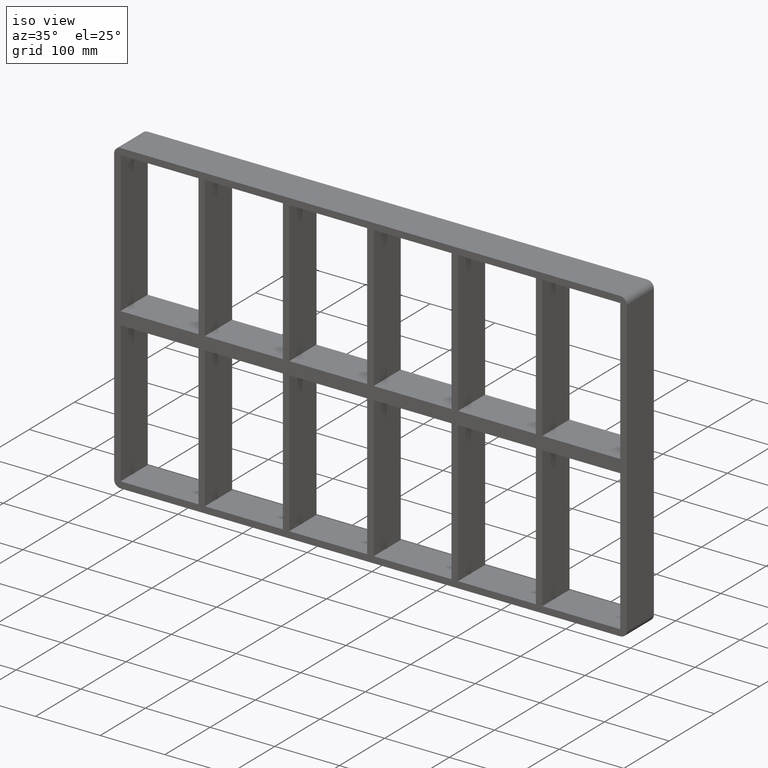
[diagram: clean part render]
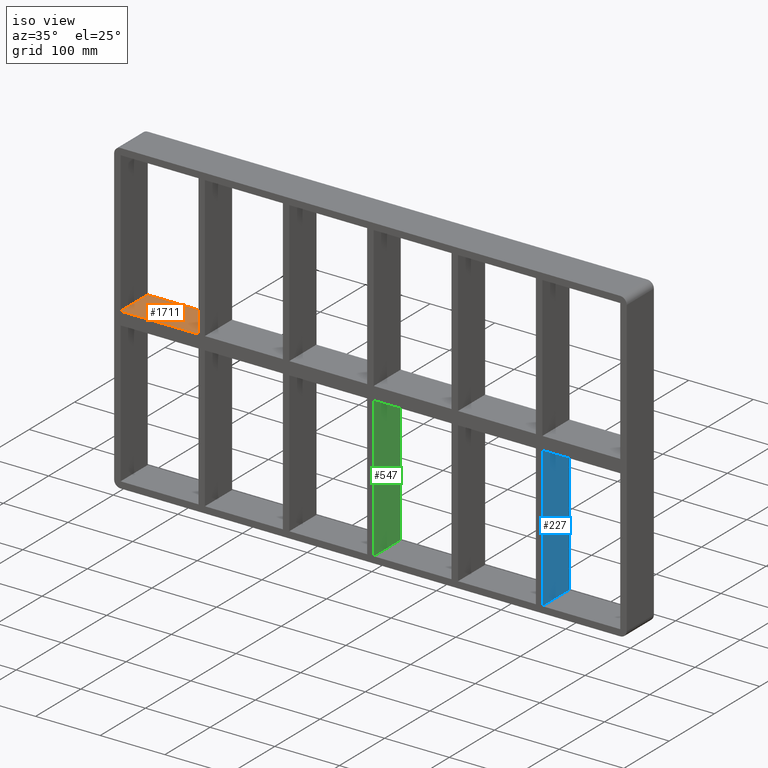
[diagram: same view with three faces highlighted in distinct colors, each labeled with its STEP entity id]
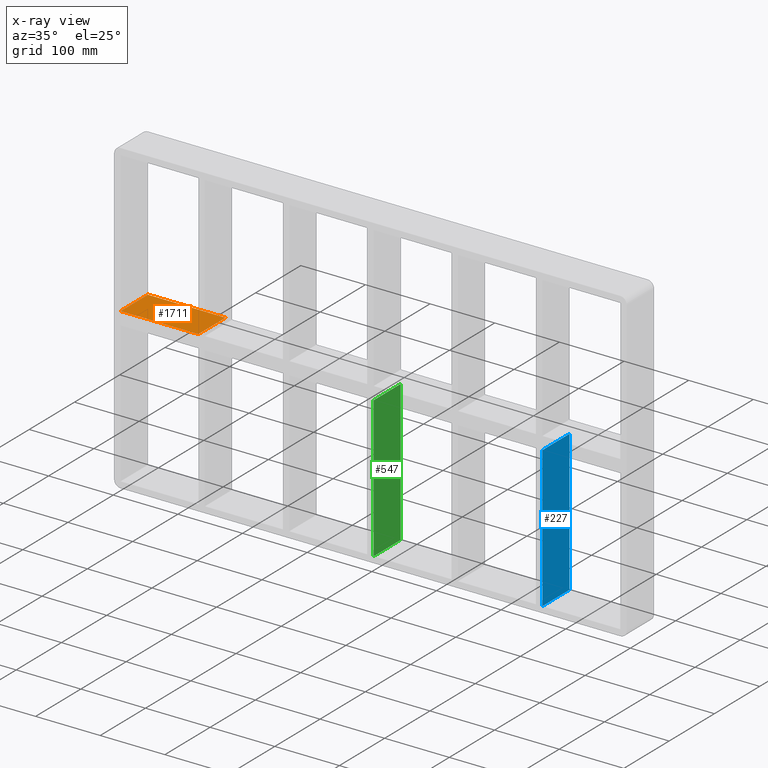
[diagram: x-ray of the same camera — body ghosted, the three highlighted faces saturated]
A machine part, iso view with three faces highlighted in distinct colors.
The next image is the same camera in x-ray (body ghosted, the three faces saturated) — at least one of them is partly hidden behind the body in this view.
Their STEP definitions:

[orange] entity #1711 — the highlighted planar face has unit normal (0, 0, 1).
#1078=CARTESIAN_POINT('',(-386.49999999999983,-3.0,10.0));
#1079=VERTEX_POINT('',#1078);
#1096=CARTESIAN_POINT('',(-266.00000000000131,-3.0,10.0));
#1097=VERTEX_POINT('',#1096);
#1104=CARTESIAN_POINT('',(-386.49999999999983,-3.0,10.0));
#1105=DIRECTION('',(1.0,0.0,0.0));
#1106=VECTOR('',#1105,120.49999999999852);
#1107=LINE('',#1104,#1106);
#1108=EDGE_CURVE('',#1079,#1097,#1107,.T.);
#1422=CARTESIAN_POINT('',(-386.49999999999983,57.0,10.0));
#1423=VERTEX_POINT('',#1422);
#1424=CARTESIAN_POINT('',(-266.00000000000131,57.0,10.0));
#1425=VERTEX_POINT('',#1424);
#1426=CARTESIAN_POINT('',(-386.49999999999983,57.0,10.0));
#1427=DIRECTION('',(1.0,0.0,0.0));
#1428=VECTOR('',#1427,120.49999999999852);
#1429=LINE('',#1426,#1428);
#1430=EDGE_CURVE('',#1423,#1425,#1429,.T.);
#1690=CARTESIAN_POINT('',(-386.49999999999983,-3.0,10.0));
#1691=DIRECTION('',(0.0,0.0,1.0));
#1692=DIRECTION('',(1.0,0.0,0.0));
#1693=AXIS2_PLACEMENT_3D('',#1690,#1691,#1692);
#1694=PLANE('',#1693);
#1695=CARTESIAN_POINT('',(-266.00000000000131,57.0,10.0));
#1696=DIRECTION('',(0.0,-1.0,0.0));
#1697=VECTOR('',#1696,60.0);
#1698=LINE('',#1695,#1697);
#1699=EDGE_CURVE('',#1425,#1097,#1698,.T.);
#1700=ORIENTED_EDGE('',*,*,#1699,.F.);
#1701=ORIENTED_EDGE('',*,*,#1430,.F.);
#1702=CARTESIAN_POINT('',(-386.50000000000006,-3.0,10.0));
#1703=DIRECTION('',(0.0,1.0,0.0));
#1704=VECTOR('',#1703,60.000000000000007);
#1705=LINE('',#1702,#1704);
#1706=EDGE_CURVE('',#1079,#1423,#1705,.T.);
#1707=ORIENTED_EDGE('',*,*,#1706,.F.);
#1708=ORIENTED_EDGE('',*,*,#1108,.T.);
#1709=EDGE_LOOP('',(#1700,#1701,#1707,#1708));
#1710=FACE_OUTER_BOUND('',#1709,.T.);
#1711=ADVANCED_FACE('',(#1710),#1694,.T.);

[blue] entity #227 — the highlighted planar face has unit normal (1, 0, 0).
#188=CARTESIAN_POINT('',(265.99999999999642,-3.0,227.99999999999997));
#189=DIRECTION('',(1.0,0.0,0.0));
#190=DIRECTION('',(0.0,0.0,-1.0));
#191=AXIS2_PLACEMENT_3D('',#188,#189,#190);
#192=PLANE('',#191);
#193=CARTESIAN_POINT('',(265.99999999999642,-3.0,-10.000000000009344));
#194=VERTEX_POINT('',#193);
#195=CARTESIAN_POINT('',(265.99999999999642,57.0,-10.000000000009344));
#196=VERTEX_POINT('',#195);
#197=CARTESIAN_POINT('',(265.99999999999636,-3.0,-10.000000000009344));
#198=DIRECTION('',(0.0,1.0,0.0));
#199=VECTOR('',#198,60.0);
#200=LINE('',#197,#199);
#201=EDGE_CURVE('',#194,#196,#200,.T.);
#202=ORIENTED_EDGE('',*,*,#201,.F.);
#203=CARTESIAN_POINT('',(265.99999999999642,-3.0,-227.99999999998417));
#204=VERTEX_POINT('',#203);
#205=CARTESIAN_POINT('',(265.99999999999642,-3.0,-10.000000000009351));
#206=DIRECTION('',(0.0,0.0,-1.0));
#207=VECTOR('',#206,217.99999999997488);
#208=LINE('',#205,#207);
#209=EDGE_CURVE('',#194,#204,#208,.T.);
#210=ORIENTED_EDGE('',*,*,#209,.T.);
#211=CARTESIAN_POINT('',(265.99999999999642,57.0,-227.9999999999842));
#212=VERTEX_POINT('',#211);
#213=CARTESIAN_POINT('',(265.99999999999648,57.000000000000007,-227.99999999999997));
#214=DIRECTION('',(0.0,-1.0,0.0));
#215=VECTOR('',#214,60.000000000000007);
#216=LINE('',#213,#215);
#217=EDGE_CURVE('',#212,#204,#216,.T.);
#218=ORIENTED_EDGE('',*,*,#217,.F.);
#219=CARTESIAN_POINT('',(265.99999999999642,57.0,-10.000000000009351));
#220=DIRECTION('',(0.0,0.0,-1.0));
#221=VECTOR('',#220,217.99999999997488);
#222=LINE('',#219,#221);
#223=EDGE_CURVE('',#196,#212,#222,.T.);
#224=ORIENTED_EDGE('',*,*,#223,.F.);
#225=EDGE_LOOP('',(#202,#210,#218,#224));
#226=FACE_OUTER_BOUND('',#225,.T.);
#227=ADVANCED_FACE('',(#226),#192,.T.);

[green] entity #547 — the highlighted planar face has unit normal (1, 0, 0).
#508=CARTESIAN_POINT('',(4.999999999996376,-3.0,227.99999999999997));
#509=DIRECTION('',(1.0,0.0,0.0));
#510=DIRECTION('',(0.0,0.0,-1.0));
#511=AXIS2_PLACEMENT_3D('',#508,#509,#510);
#512=PLANE('',#511);
#513=CARTESIAN_POINT('',(4.999999999996376,-3.0,-10.000000000009344));
#514=VERTEX_POINT('',#513);
#515=CARTESIAN_POINT('',(4.999999999996376,57.0,-10.000000000009344));
#516=VERTEX_POINT('',#515);
#517=CARTESIAN_POINT('',(4.999999999996376,-3.0,-10.000000000009361));
#518=DIRECTION('',(0.0,1.0,0.0));
#519=VECTOR('',#518,60.0);
#520=LINE('',#517,#519);
#521=EDGE_CURVE('',#514,#516,#520,.T.);
#522=ORIENTED_EDGE('',*,*,#521,.F.);
#523=CARTESIAN_POINT('',(4.999999999996376,-3.0,-227.99999999998417));
#524=VERTEX_POINT('',#523);
#525=CARTESIAN_POINT('',(4.999999999996376,-3.0,-10.000000000009351));
#526=DIRECTION('',(0.0,0.0,-1.0));
#527=VECTOR('',#526,217.99999999997488);
#528=LINE('',#525,#527);
#529=EDGE_CURVE('',#514,#524,#528,.T.);
#530=ORIENTED_EDGE('',*,*,#529,.T.);
#531=CARTESIAN_POINT('',(4.999999999996376,57.0,-227.9999999999842));
#532=VERTEX_POINT('',#531);
#533=CARTESIAN_POINT('',(4.999999999996376,57.000000000000007,-227.99999999999997));
#534=DIRECTION('',(0.0,-1.0,0.0));
#535=VECTOR('',#534,60.000000000000007);
#536=LINE('',#533,#535);
#537=EDGE_CURVE('',#532,#524,#536,.T.);
#538=ORIENTED_EDGE('',*,*,#537,.F.);
#539=CARTESIAN_POINT('',(4.999999999996376,57.0,-10.000000000009351));
#540=DIRECTION('',(0.0,0.0,-1.0));
#541=VECTOR('',#540,217.99999999997488);
#542=LINE('',#539,#541);
#543=EDGE_CURVE('',#516,#532,#542,.T.);
#544=ORIENTED_EDGE('',*,*,#543,.F.);
#545=EDGE_LOOP('',(#522,#530,#538,#544));
#546=FACE_OUTER_BOUND('',#545,.T.);
#547=ADVANCED_FACE('',(#546),#512,.T.);